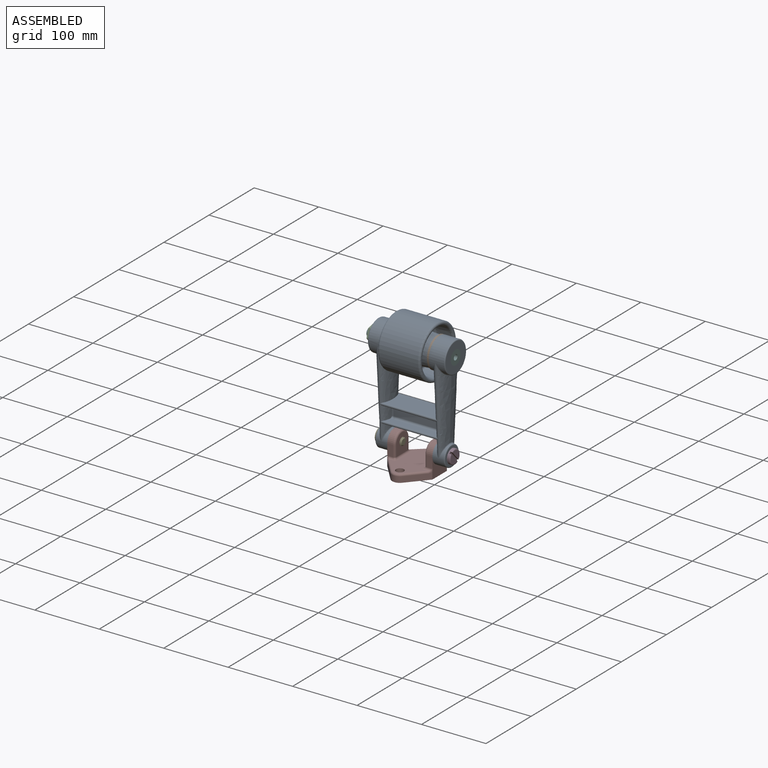
[diagram: assembled view]
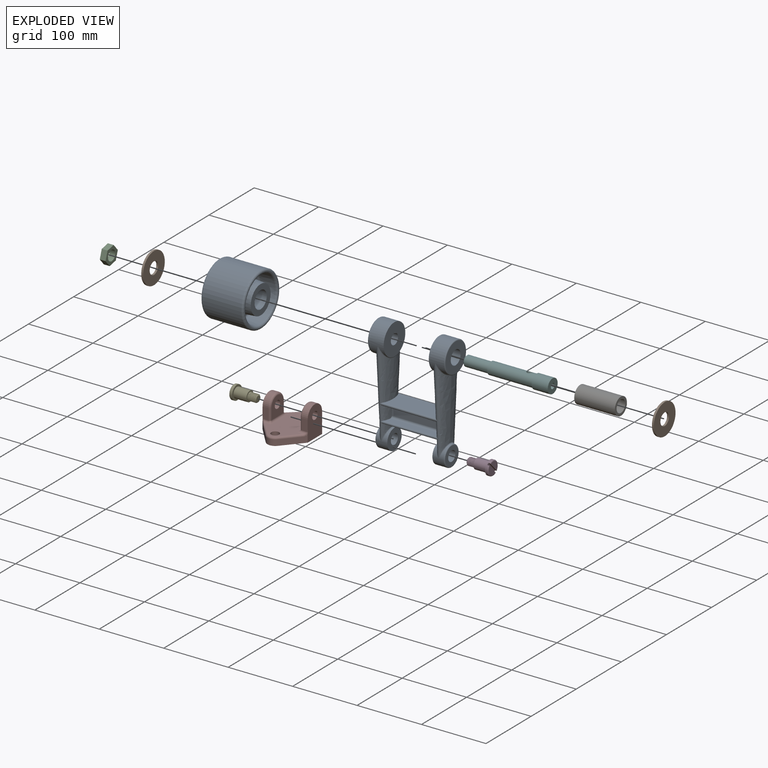
[diagram: exploded view]
GUIDED TOUR — MATED ASSEMBLY (Onshape document 42afe4945be6161ba406758f, AutoMate assembly 42afe4945be6161ba406758f_dd6ebe2deab0619ed951adb3_95dd95c29962d40d304b8ec3_default)

This assembly has 10 components, labeled P0..P9 below (a component is one placed occurrence of a part; the same part can appear more than once), held together by 9 mates. A mate is a constraint between two components; its type names the relative motion it leaves free:
  CYLINDRICAL — leaves both rotation about and translation along the listed axis free,
  FASTENED — locks the two components together rigidly (no relative motion),
  REVOLUTE — leaves rotation about the listed axis free (a hinge).
Axis/direction vectors are unit vectors and 'through' points are millimeter coordinates, both in the assembly's world frame.

MATES
  1. CYLINDRICAL "Cylindrical 3": P2 <-> P0, axis (1.000, 0.000, 0.000) through (-101.11, 20.08, 131.72) mm
  2. FASTENED "Fastened 1": P9 <-> P0, direction (1.000, 0.000, 0.000) through (-6.11, 20.08, 131.72) mm
  3. FASTENED "Fastened 2": P1 <-> P0, direction (-1.000, 0.000, 0.000) through (-76.11, 20.08, 131.72) mm
  4. CYLINDRICAL "Cylindrical 1": P3 <-> P0, axis (1.000, 0.000, 0.000) through (12.89, 20.08, -8.28) mm
  5. REVOLUTE "Revolute 1": P0 <-> P7, axis (-1.000, 0.000, 0.000) through (-76.11, 20.08, -8.28) mm
  6. REVOLUTE "Revolute 3": P6 <-> P5, axis (1.000, 0.000, 0.000) through (-41.11, 20.08, 131.72) mm
  7. CYLINDRICAL "Cylindrical 2": P4 <-> P0, axis (1.000, 0.000, 0.000) through (-94.67, 20.08, -8.28) mm
  8. REVOLUTE "Revolute 4": P8 <-> P6, axis (1.000, 0.000, 0.000) through (-41.11, 20.08, 131.72) mm
  9. REVOLUTE "Revolute 2": P5 <-> P0, axis (1.000, 0.000, 0.000) through (18.89, 20.08, 131.72) mm

ASSEMBLY ORDER
  1. P0 — the base component [order heuristic]
  2. P1 — core [order heuristic]
  3. P3 — core [order heuristic]
  4. P4 — core [order heuristic]
  5. P2 [order verified]
  6. P7 — core [order heuristic]
  7. P8 — core [order heuristic]
  8. P5 — core [order heuristic]
  9. P6 — core [order heuristic]
  10. P9 — core [order heuristic]
Order-tag legend:
  [order verified] — this step's position reverses a verified removal order: the component was checked to insert without passing through the ones already placed.
  [order heuristic] — the first 9 components form the assembly's core: parts whose collision-free extraction could not be verified, listed in mate-graph order.

Of the 10 components, 3 carry the full construction recipe — the FeatureScript program that regenerates the part's solid from scratch; the rest are supplied as boundary geometry only.
Each toured component is shown spotlighted twice — in the assembled view, then in the exploded view, where a leader line traces a displaced component back to its assembled socket (saturated green if recipe-attached, orange if geometry-only; every other component desaturated gray) — followed by its recipe or geometry summary and the mates that hold it.
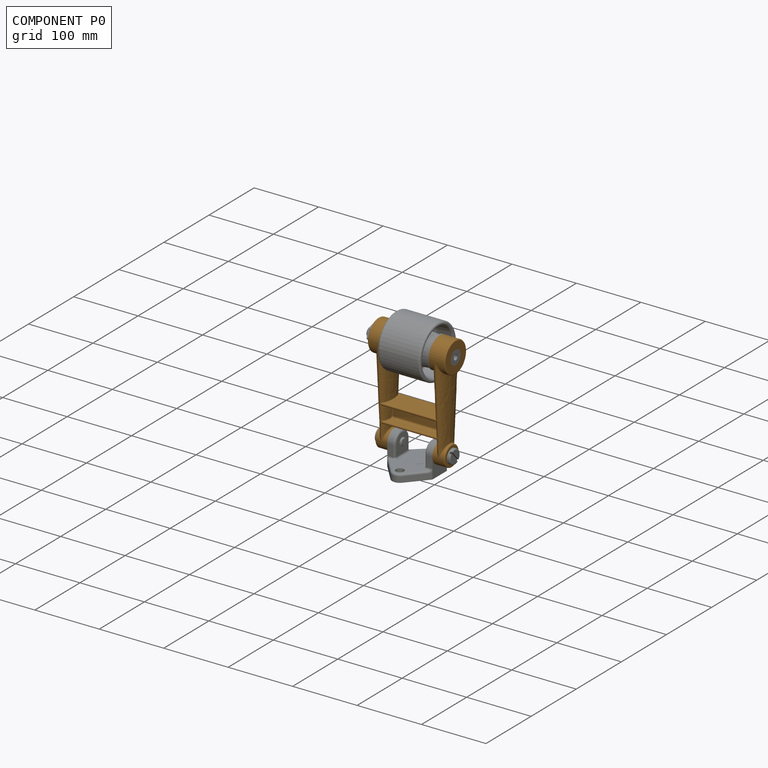
[diagram: component P0 — assembled]
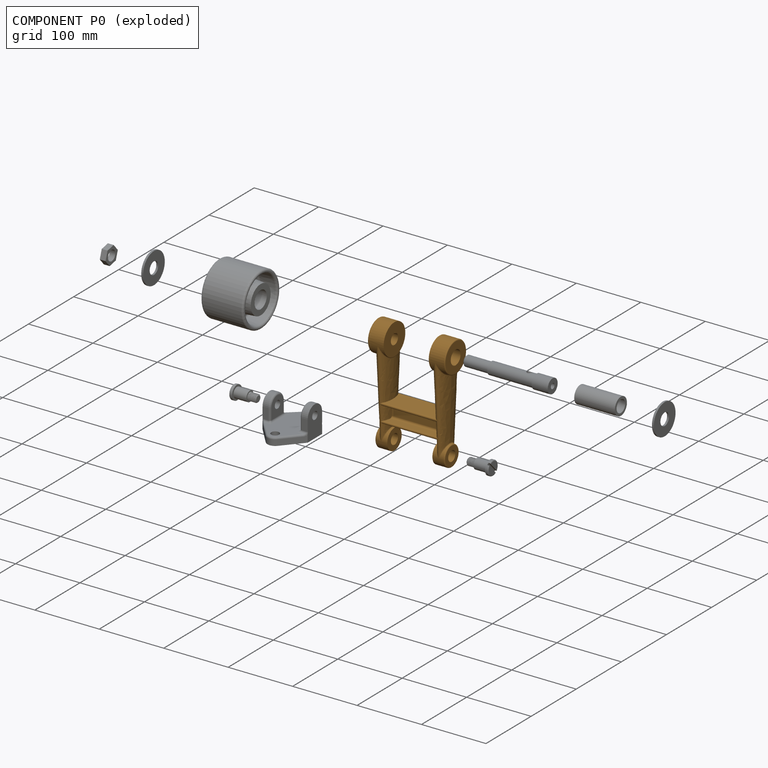
[diagram: component P0 — exploded]
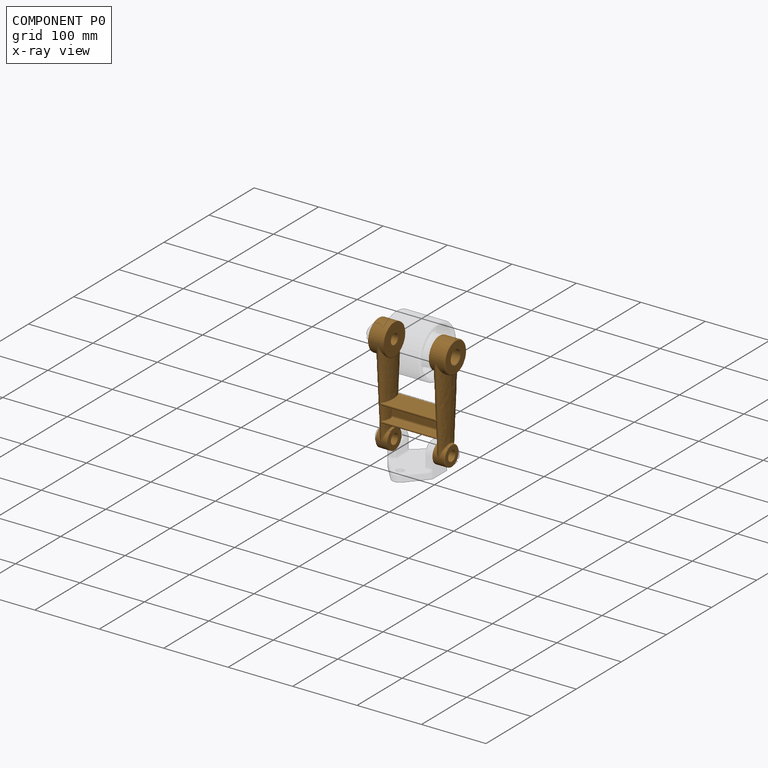
[diagram: component P0 — x-ray view]
COMPONENT P0 — geometry summary (no construction recipe available for this part):
  bounding box: 183.3 x 120.0 x 52.0 mm
  B-rep topology: 1 solid, 57 faces, 316 edges
  volume: 229439 mm^3 (20% of its bounding box)
  symmetry: mirror-symmetric across its y mid-plane
Held by: CYLINDRICAL mate "Cylindrical 3" to P2; FASTENED mate "Fastened 1" to P9; FASTENED mate "Fastened 2" to P1; CYLINDRICAL mate "Cylindrical 1" to P3; REVOLUTE mate "Revolute 1" to P7; CYLINDRICAL mate "Cylindrical 2" to P4; REVOLUTE mate "Revolute 2" to P5.
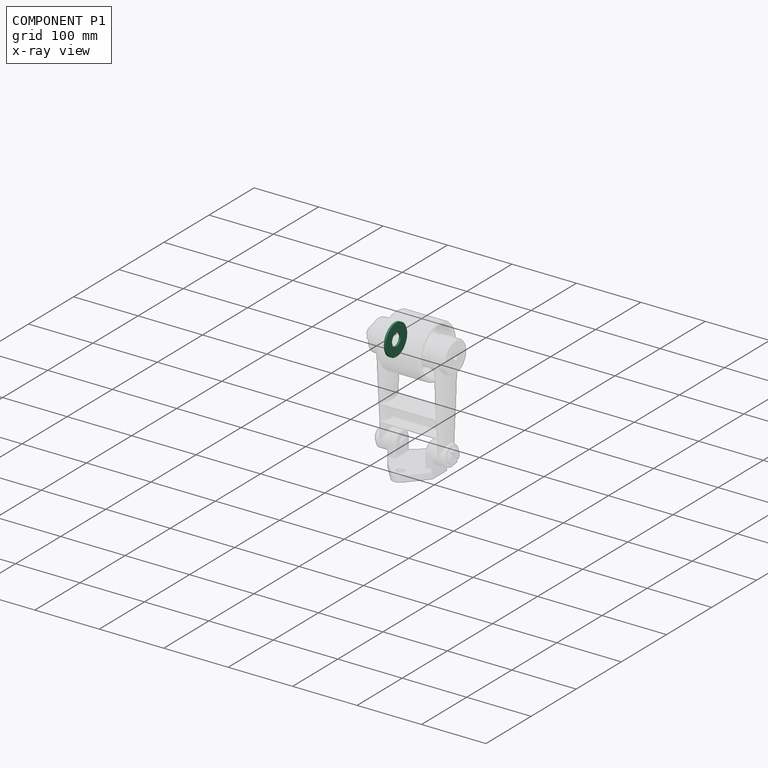
[diagram: component P1 — x-ray view]
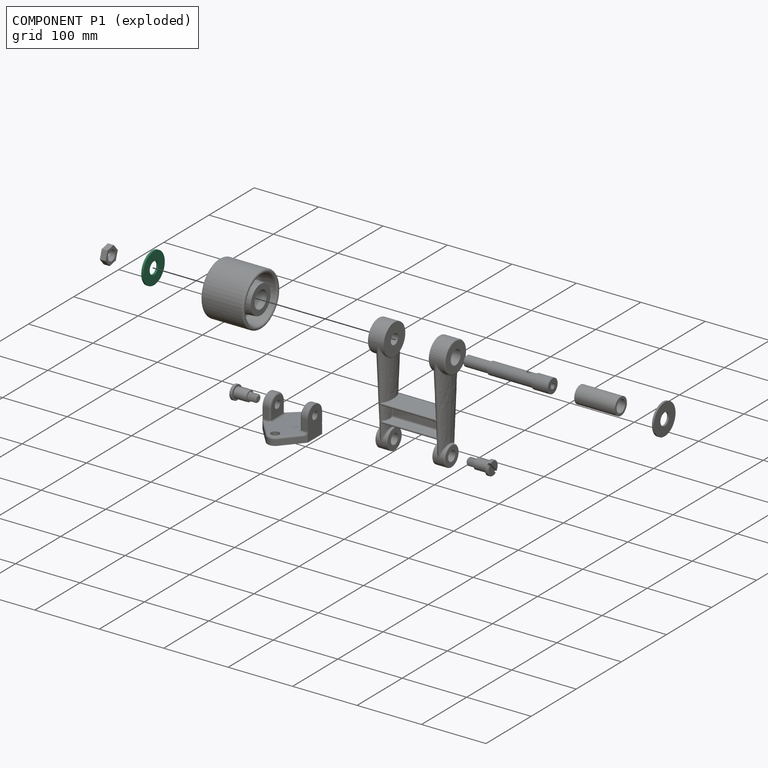
[diagram: component P1 — exploded]
COMPONENT P1 — recipe-attached (CADFS 00144085, mesh-verified: the recipe's output STEP matches this component's geometry to below the mesh-comparison resolution (tessellation chordal tolerance ~0.102 mm)).
Held by: FASTENED mate "Fastened 2" to P0.
Construction recipe (FeatureScript — the CAD program that rebuilds this solid; sketch coordinates are in the units given by the * unit suffixes, e.g. mm):

FeatureScript 1511;
import(path : "onshape/std/geometry.fs", version : "1511.0");
import(path : "onshape/std/common.fs", version : "1511.0");
const mm = millimeter;
const VERTEX = EntityType.VERTEX;
const EDGE = EntityType.EDGE;
const FACE = EntityType.FACE;
const BODY = EntityType.BODY;
function v(x, y){return vector(x, y);}
function OD(order){return orderDisambiguation(order);}
function OSD(set){return originalSetDisambiguation(set);}
function TD(topology){return topologyDisambiguation(topology);}
function TDD(query){return trueDependencyDisambiguation(query);}
function sQuery(a, b, c) {return sketchEntityQuery(a, b, c);}

annotation { "Feature Type Name" : "Feature", "Feature Type Description" : "" }
export const myFeature = defineFeature(function(context is Context, id is Id, definition is map)
    precondition{}
    {
        {
            var Q0;
            Q0=qCreatedBy(makeId("Front.planeOp"),FACE);
            var sketch = newSketch(context, id + "F0", { "sketchPlane" : qUnion([Q0])});
            skCircle(sketch, "E0", {"center": v(0, 0) * mm, "radius": 9.5 * mm});
            skCircle(sketch, "E1", {"center": v(0, 0) * mm, "radius": 24 * mm});
            skSolve(sketch);
        }
        {
            var Q0;
            Q0 = qSketchRegion(id + "F0", true);
            extrude(context, id + "F1", {"entities" : qUnion([Q0]), "depth" : 3 * mm});
        }
    });
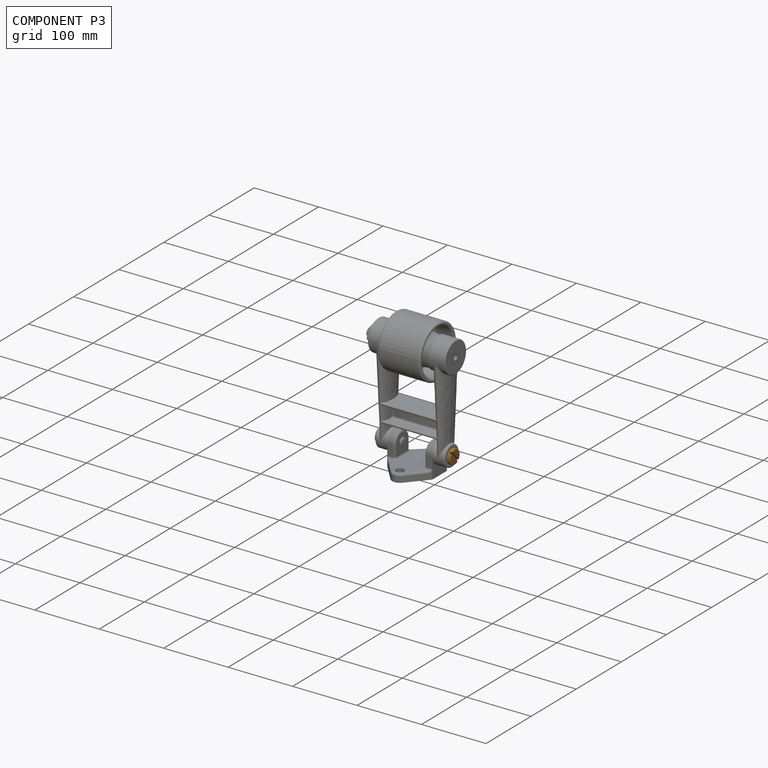
[diagram: component P3 — assembled]
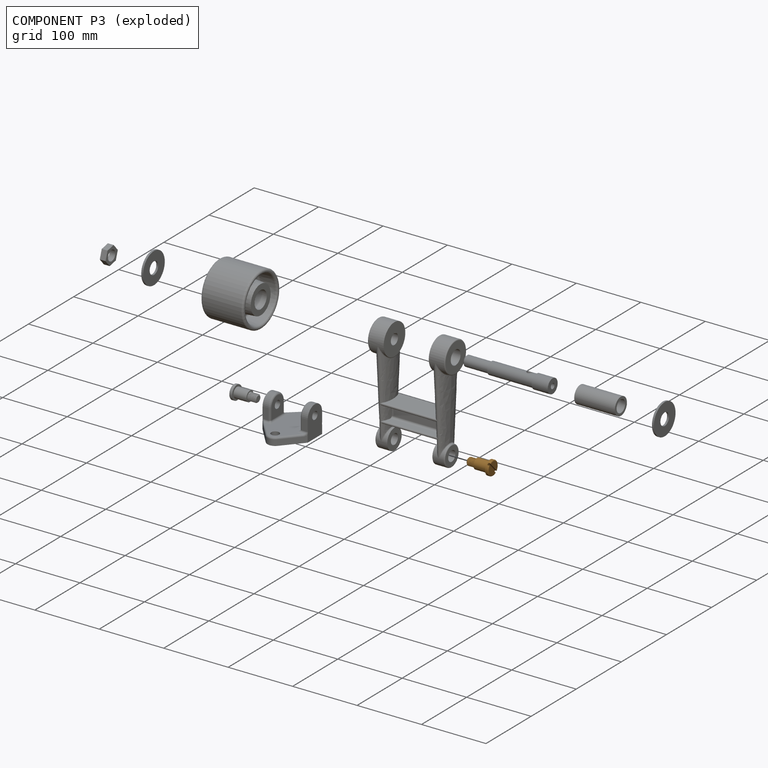
[diagram: component P3 — exploded]
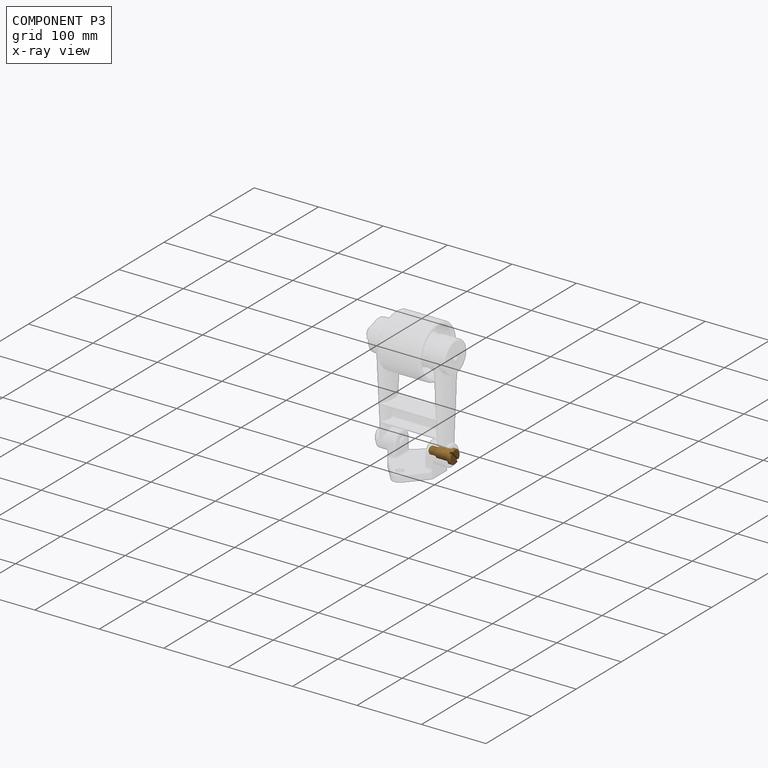
[diagram: component P3 — x-ray view]
COMPONENT P3 — geometry summary (no construction recipe available for this part):
  bounding box: 38.0 x 23.8 x 23.6 mm
  B-rep topology: 1 solid, 18 faces, 78 edges
  volume: 6999 mm^3 (33% of its bounding box)
Held by: CYLINDRICAL mate "Cylindrical 1" to P0.
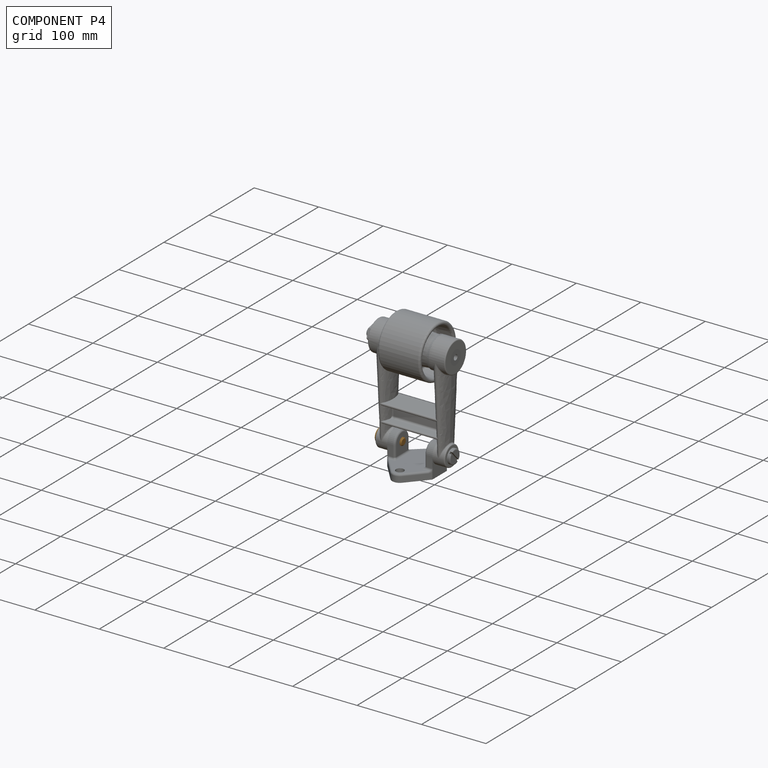
[diagram: component P4 — assembled]
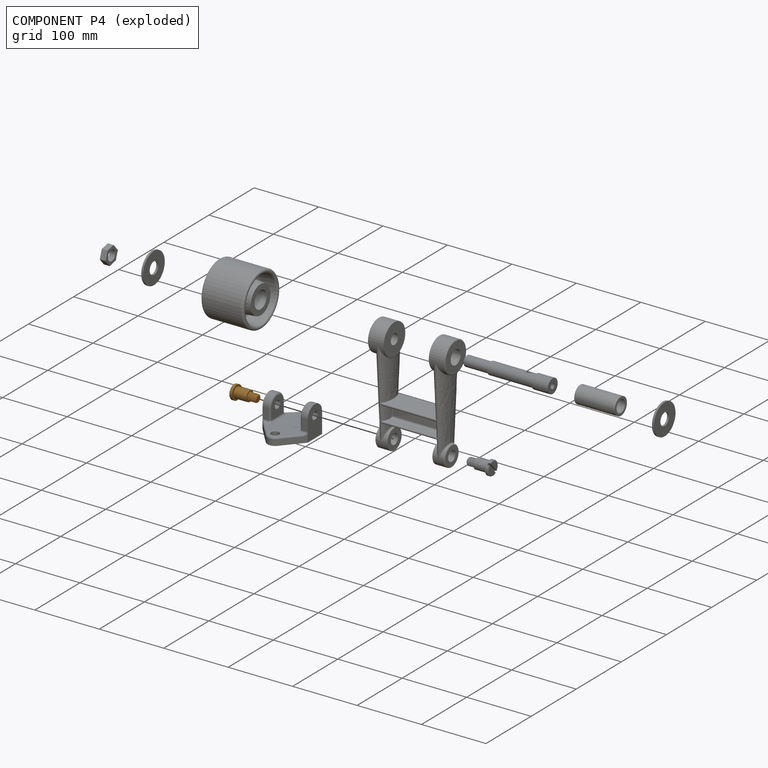
[diagram: component P4 — exploded]
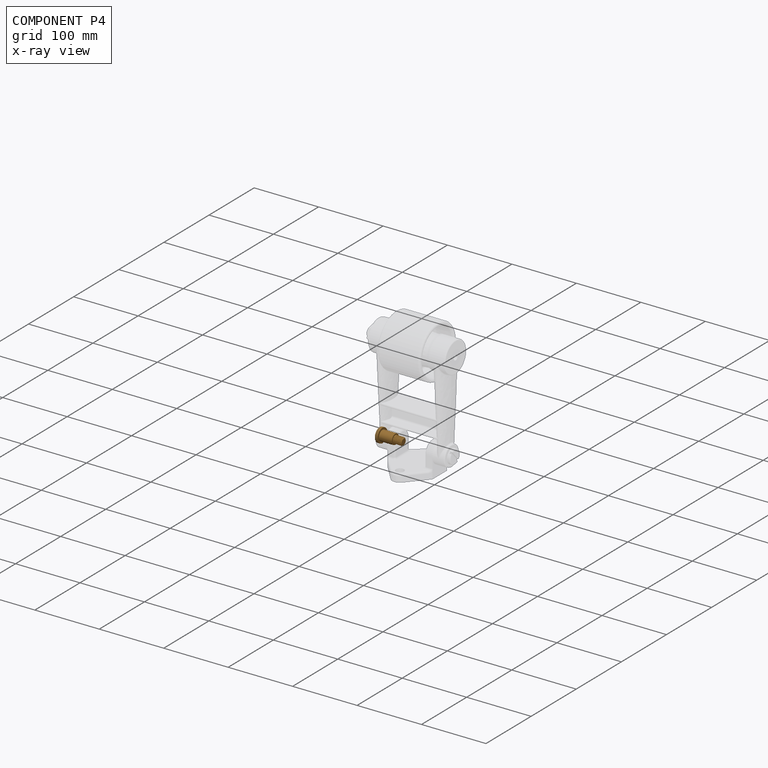
[diagram: component P4 — x-ray view]
COMPONENT P4 — geometry summary (no construction recipe available for this part):
  bounding box: 38.0 x 23.8 x 23.6 mm
  B-rep topology: 1 solid, 18 faces, 78 edges
  volume: 6999 mm^3 (33% of its bounding box)
Held by: CYLINDRICAL mate "Cylindrical 2" to P0.
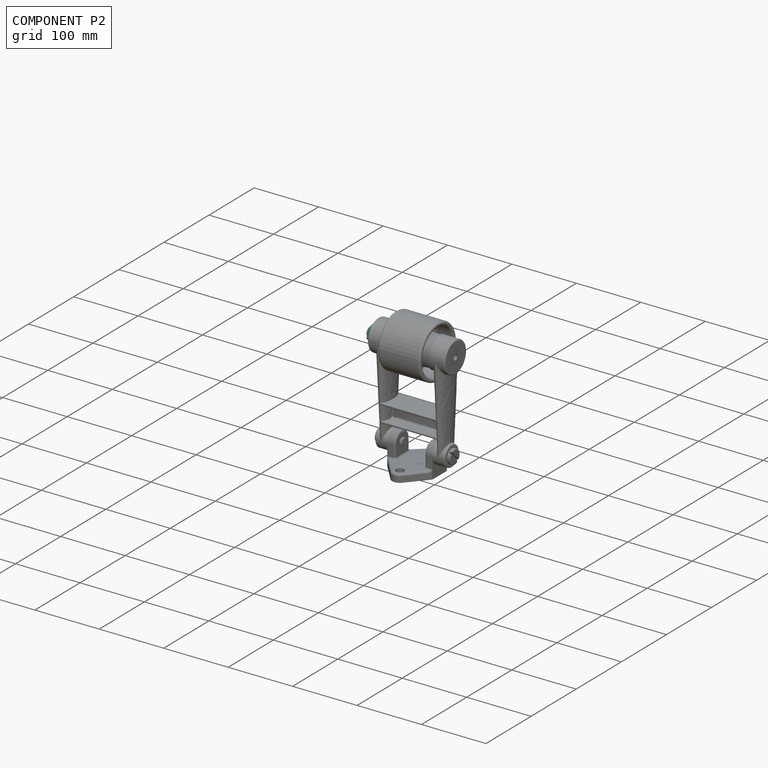
[diagram: component P2 — assembled]
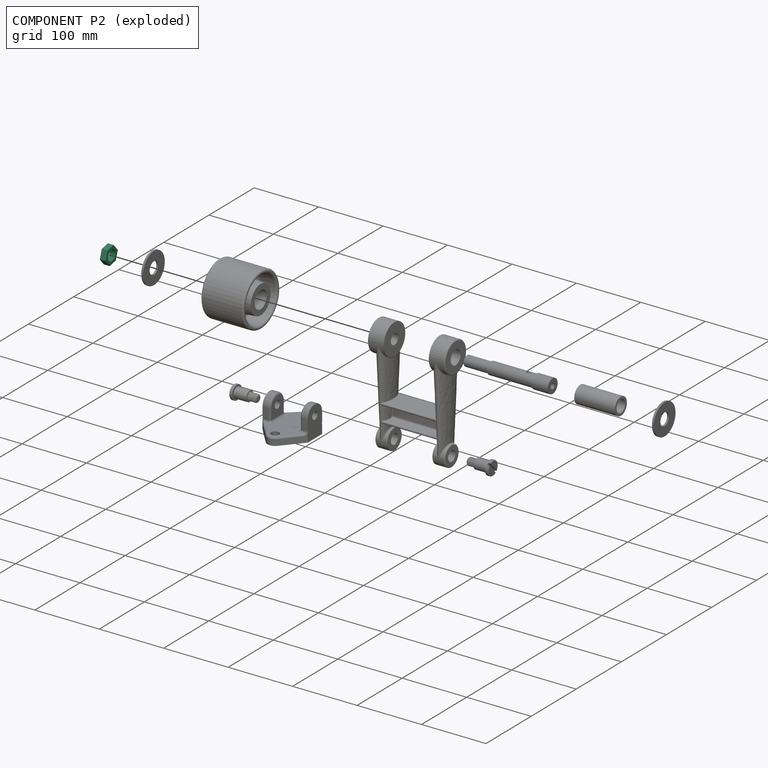
[diagram: component P2 — exploded]
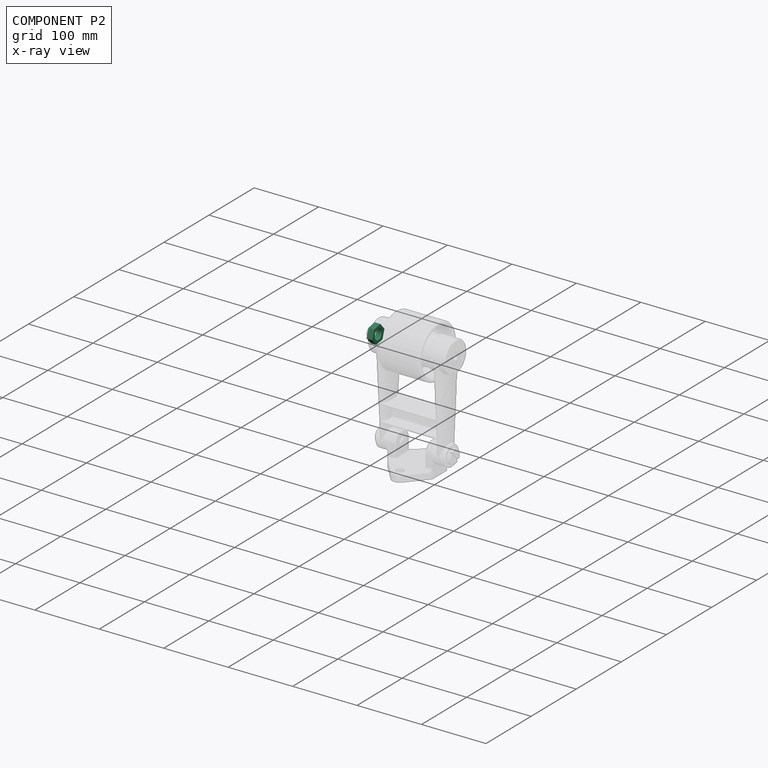
[diagram: component P2 — x-ray view]
COMPONENT P2 — recipe-attached (CADFS 00144086, mesh-verified: the recipe's output STEP matches this component's geometry to below the mesh-comparison resolution (tessellation chordal tolerance ~0.0566 mm)).
Held by: CYLINDRICAL mate "Cylindrical 3" to P0.
Construction recipe (FeatureScript — the CAD program that rebuilds this solid; sketch coordinates are in the units given by the * unit suffixes, e.g. mm):

FeatureScript 1511;
import(path : "onshape/std/geometry.fs", version : "1511.0");
import(path : "onshape/std/common.fs", version : "1511.0");
const mm = millimeter;
const VERTEX = EntityType.VERTEX;
const EDGE = EntityType.EDGE;
const FACE = EntityType.FACE;
const BODY = EntityType.BODY;
function v(x, y){return vector(x, y);}
function OD(order){return orderDisambiguation(order);}
function OSD(set){return originalSetDisambiguation(set);}
function TD(topology){return topologyDisambiguation(topology);}
function TDD(query){return trueDependencyDisambiguation(query);}
function sQuery(a, b, c) {return sketchEntityQuery(a, b, c);}

annotation { "Feature Type Name" : "Feature", "Feature Type Description" : "" }
export const myFeature = defineFeature(function(context is Context, id is Id, definition is map)
    precondition{}
    {
        {
            var Q0;
            Q0=qCreatedBy(makeId("Front.planeOp"),FACE);
            var sketch = newSketch(context, id + "F0", { "sketchPlane" : qUnion([Q0])});
            skCircle(sketch, "E0.cCircle", {"center": v(0, 0) * mm, "radius": 12 * mm, "construction": true});
            skLineSegment(sketch, "E0.0", {"start": v(-6.93, 12) * mm, "end": v(6.93, 12) * mm});
            skLineSegment(sketch, "E0.1", {"start": v(6.93, 12) * mm, "end": v(13.86, 0) * mm});
            skLineSegment(sketch, "E0.2", {"start": v(13.86, 0) * mm, "end": v(6.93, -12) * mm});
            skLineSegment(sketch, "E0.3", {"start": v(6.93, -12) * mm, "end": v(-6.93, -12) * mm});
            skLineSegment(sketch, "E0.4", {"start": v(-6.93, -12) * mm, "end": v(-13.86, 0) * mm});
            skLineSegment(sketch, "E0.5", {"start": v(-13.86, 0) * mm, "end": v(-6.93, 12) * mm});
            skPoint(sketch, "E0.0.midPoint", {"position": v(0, 12) * mm});
            skSolve(sketch);
        }
        {
            var Q0;
            Q0 = qSketchRegion(id + "F0", true);
            extrude(context, id + "F1", {"entities" : qUnion([Q0]), "oppositeDirection" : true, "depth" : 9 * mm});
        }
        {
            var Q0;
            Q0=makeQuery(id+"F1.opExtrude","CAP_FACE",FACE,{"disambiguationData":[OSD([sQuery(id+"F0.wireOp",EDGE,"E0.0"),sQuery(id+"F0.wireOp",EDGE,"E0.1"),sQuery(id+"F0.wireOp",EDGE,"E0.2"),sQuery(id+"F0.wireOp",EDGE,"E0.3"),sQuery(id+"F0.wireOp",EDGE,"E0.4"),sQuery(id+"F0.wireOp",EDGE,"E0.5")])],"isStart":true});
            var sketch = newSketch(context, id + "F2", { "sketchPlane" : qUnion([Q0])});
            skCircle(sketch, "E1", {"center": v(0, 0) * mm, "radius": 8 * mm});
            skSolve(sketch);
        }
        {
            var Q0;
            Q0 = qSketchRegion(id + "F2", true);
            extrude(context, id + "F3", {"entities" : qUnion([Q0]), "operationType" : NewBodyOperationType.REMOVE, "endBound" : BoundingType.THROUGH_ALL, "oppositeDirection" : true, "depth" : 25 * mm});
        }
    });
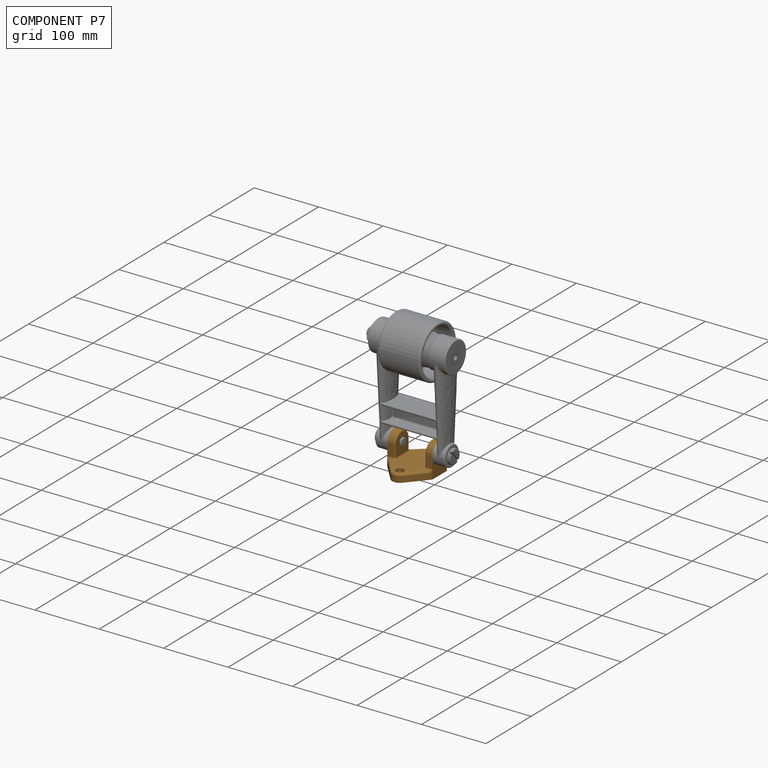
[diagram: component P7 — assembled]
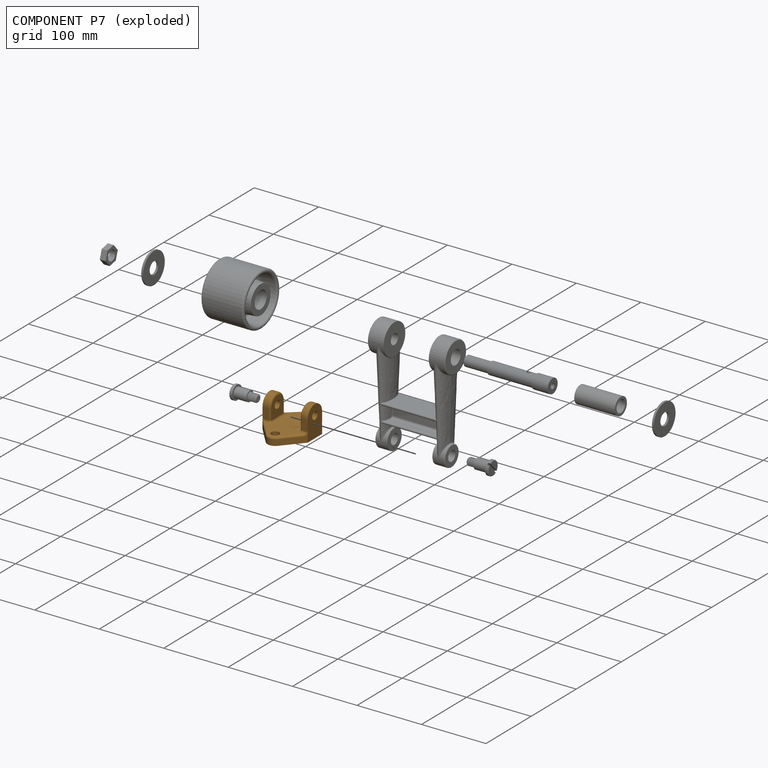
[diagram: component P7 — exploded]
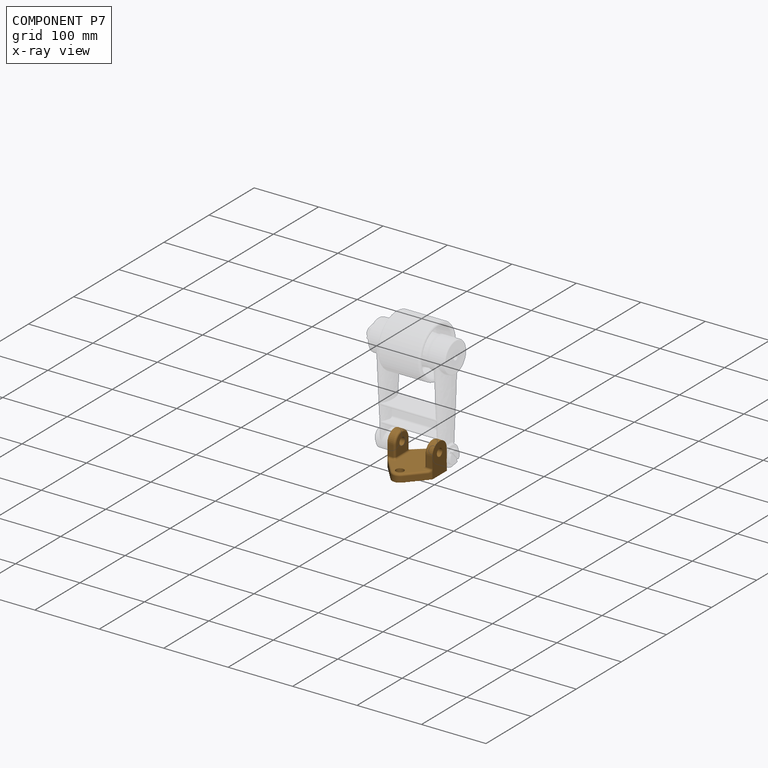
[diagram: component P7 — x-ray view]
COMPONENT P7 — geometry summary (no construction recipe available for this part):
  bounding box: 95.8 x 71.8 x 49.3 mm
  B-rep topology: 1 solid, 47 faces, 226 edges
  volume: 76310 mm^3 (23% of its bounding box)
  symmetry: mirror-symmetric across its x mid-plane
Held by: REVOLUTE mate "Revolute 1" to P0.
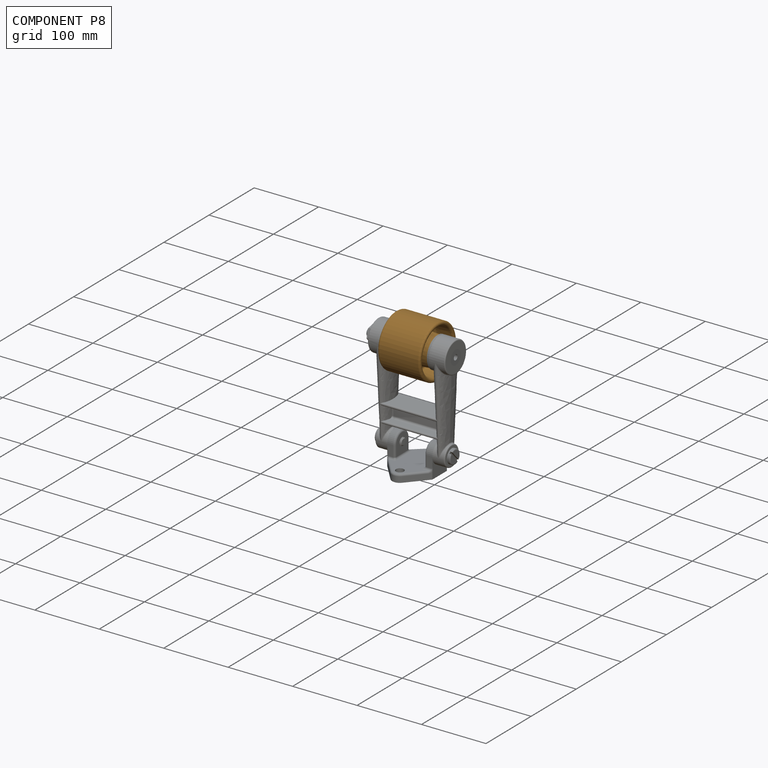
[diagram: component P8 — assembled]
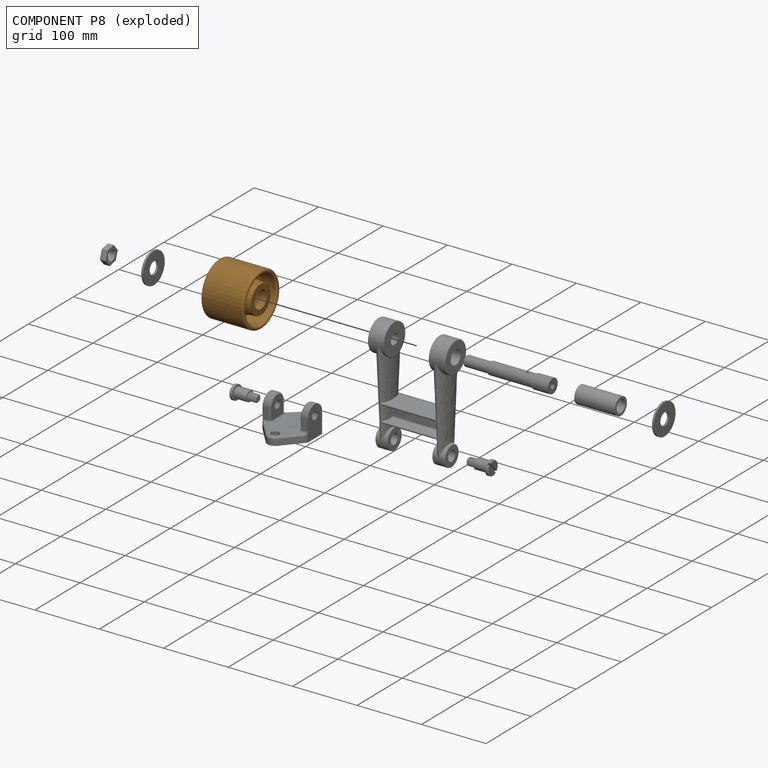
[diagram: component P8 — exploded]
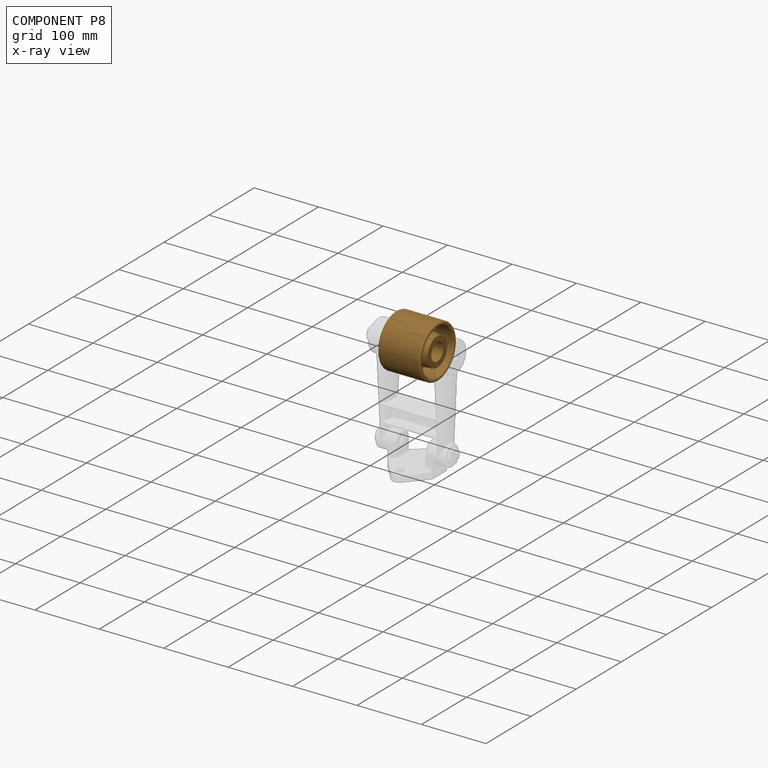
[diagram: component P8 — x-ray view]
COMPONENT P8 — geometry summary (no construction recipe available for this part):
  bounding box: 88.8 x 88.8 x 66.0 mm
  B-rep topology: 1 solid, 20 faces, 80 edges
  volume: 200839 mm^3 (39% of its bounding box)
  symmetry: revolution-symmetric about the x axis through its bounding-box center; 2-fold rotationally symmetric about the y axis; 2-fold rotationally symmetric about the z axis; mirror-symmetric across its x mid-plane, y mid-plane, z mid-plane
Held by: REVOLUTE mate "Revolute 4" to P6.
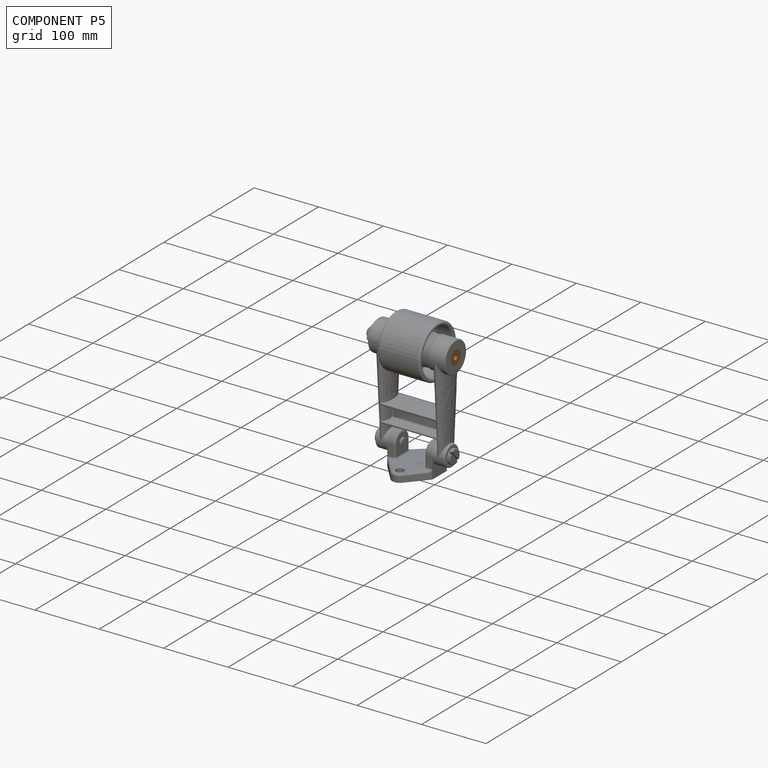
[diagram: component P5 — assembled]
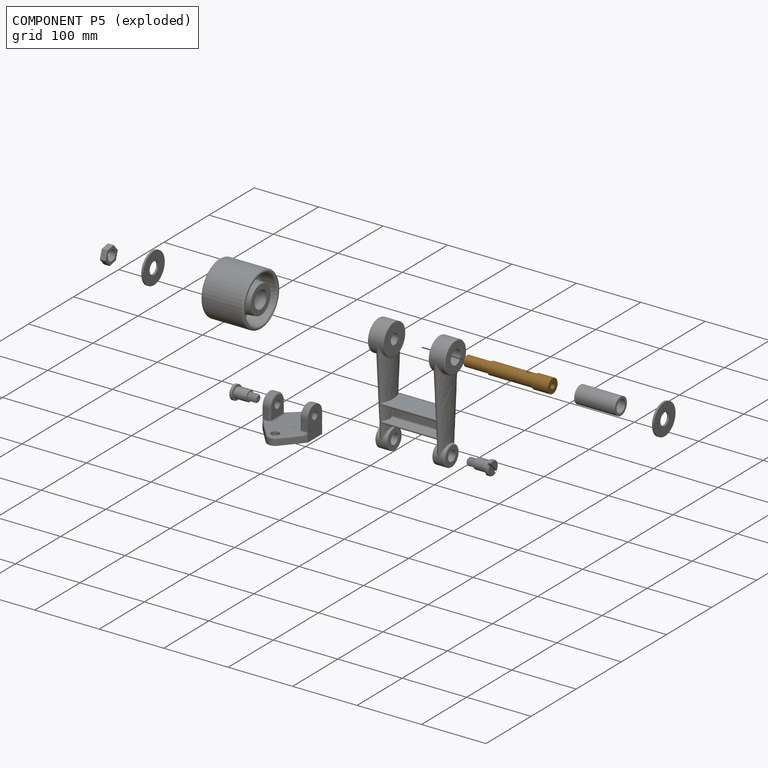
[diagram: component P5 — exploded]
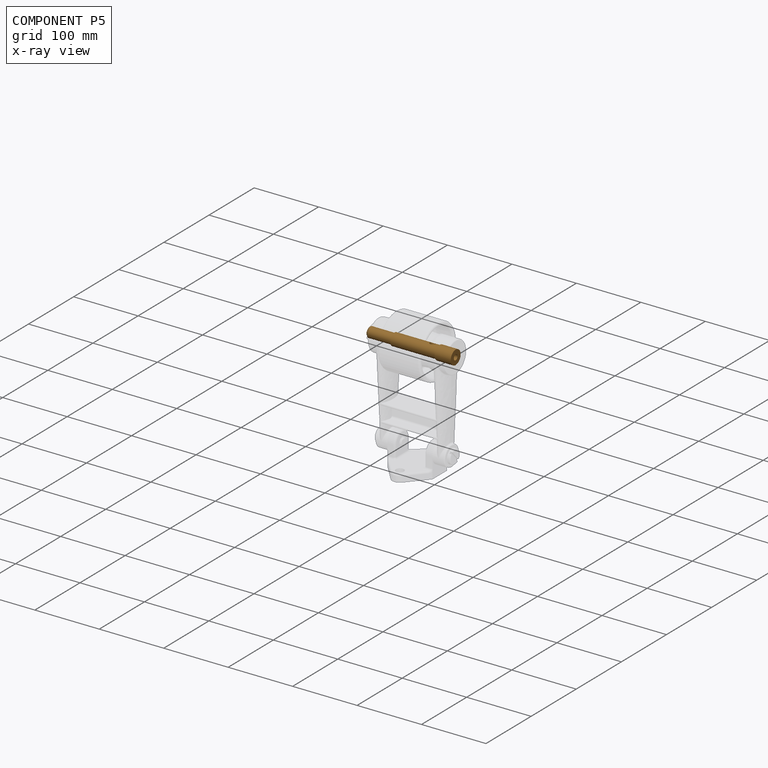
[diagram: component P5 — x-ray view]
COMPONENT P5 — geometry summary (no construction recipe available for this part):
  bounding box: 134.0 x 22.0 x 22.0 mm
  B-rep topology: 1 solid, 13 faces, 52 edges
  volume: 34137 mm^3 (53% of its bounding box)
  symmetry: 2-fold rotationally symmetric about the x axis; mirror-symmetric across its y mid-plane, z mid-plane
Held by: REVOLUTE mate "Revolute 3" to P6; REVOLUTE mate "Revolute 2" to P0.
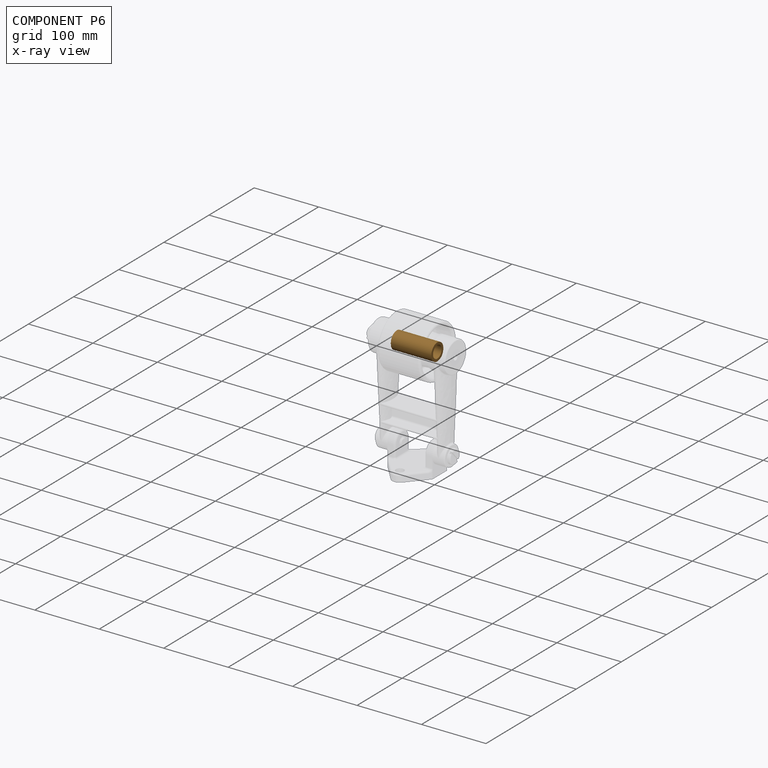
[diagram: component P6 — x-ray view]
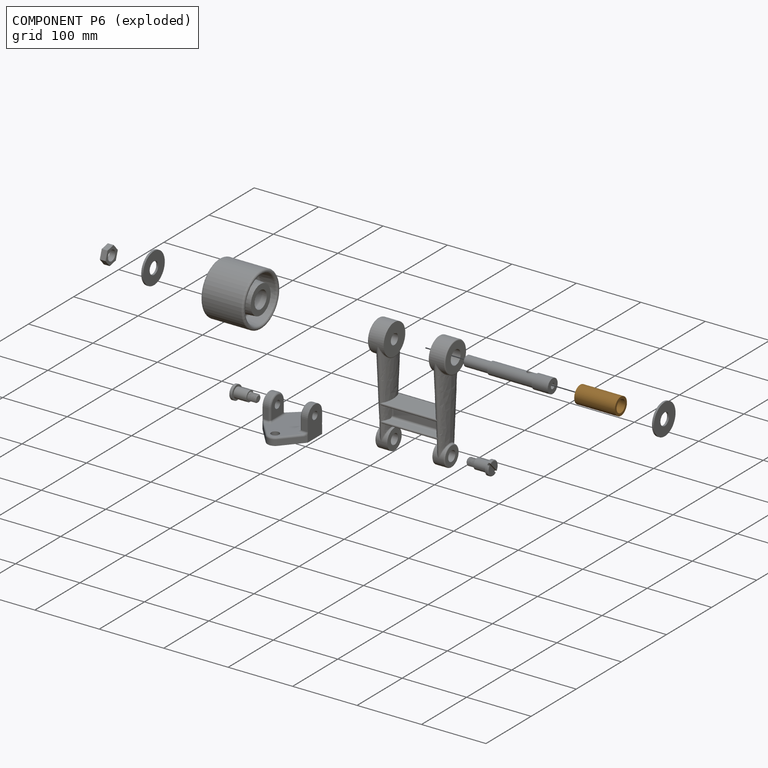
[diagram: component P6 — exploded]
COMPONENT P6 — geometry summary (no construction recipe available for this part):
  bounding box: 63.0 x 26.9 x 26.9 mm
  B-rep topology: 1 solid, 14 faces, 60 edges
  volume: 17413 mm^3 (38% of its bounding box)
  symmetry: mirror-symmetric across its y mid-plane
Held by: REVOLUTE mate "Revolute 3" to P5; REVOLUTE mate "Revolute 4" to P8.
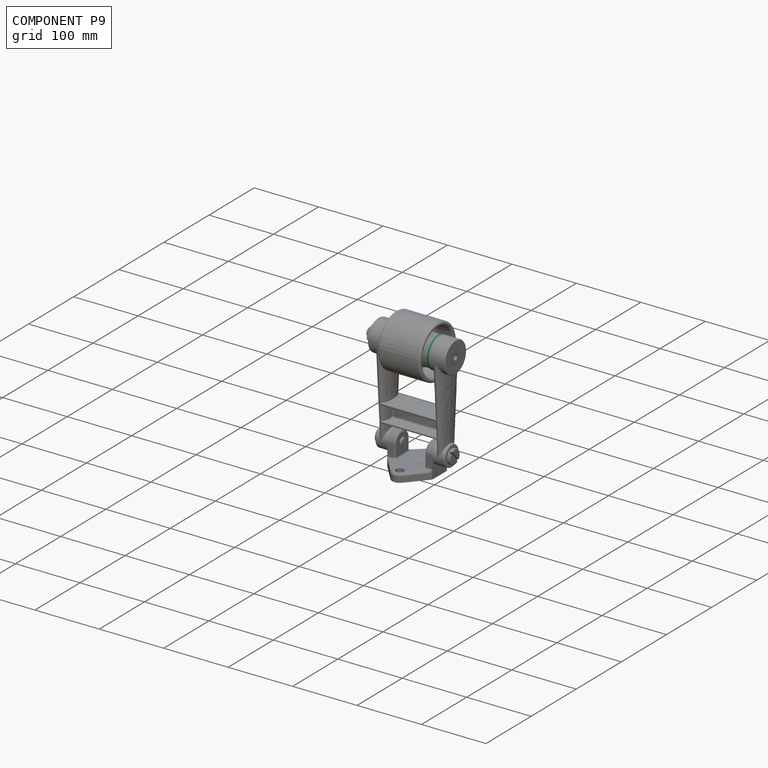
[diagram: component P9 — assembled]
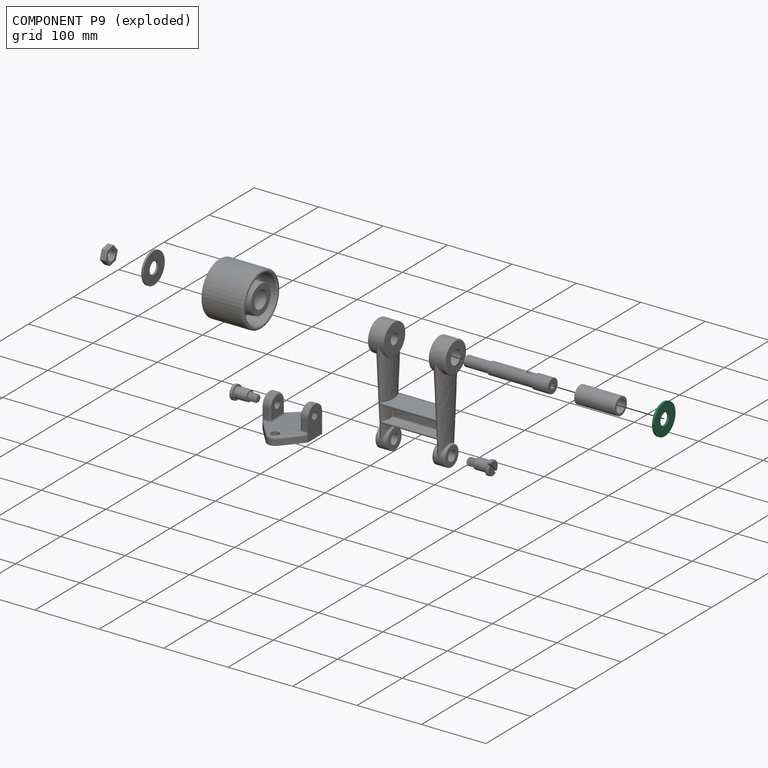
[diagram: component P9 — exploded]
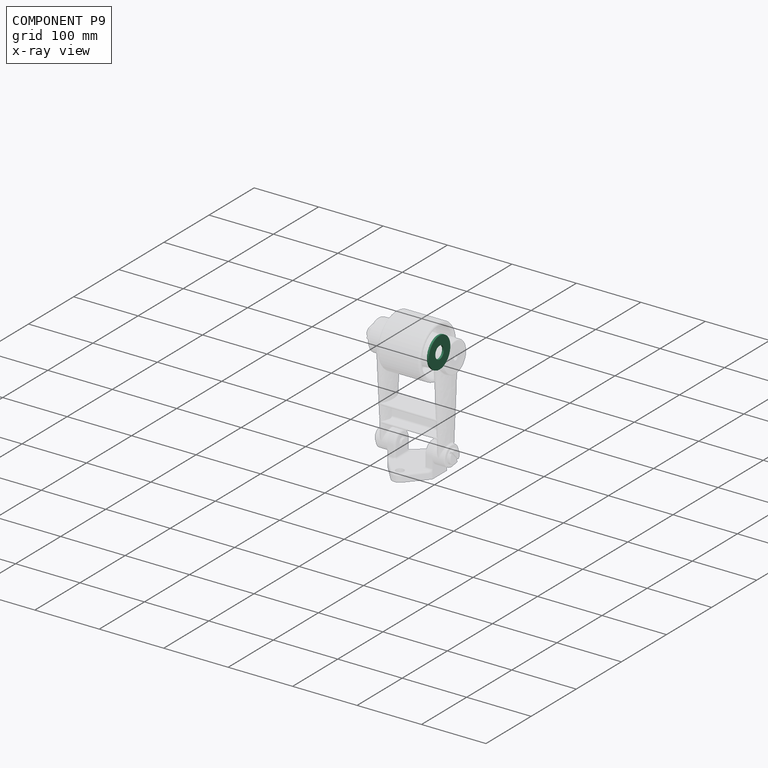
[diagram: component P9 — x-ray view]
COMPONENT P9 — same part as P1 (CADFS 00144085); its construction recipe is shown at P1.
Held by: FASTENED mate "Fastened 1" to P0.
PROVENANCE & LICENSES
Assembly (occurrences, transforms, mates, per-part STEP geometry): AutoMate dataset, Zenodo record 7776208, CC0.
Construction recipes: CADFS (HuggingFace VladPyatov/CADFS, CC-BY-4.0, layered over the ABC dataset), FeatureScript reconstruction programs keyed by ABC model id.
Join: ABC meta listings map ABC model id -> Onshape documentId; within a shared document, parts are matched by geometric signature (bounding-box dims + volume at 0.1% relative tolerance, exact B-rep face/solid counts).
Verification: 3 of this assembly's 10 components carry a recipe attachment, and every attachment is mesh-verified: the CADFS STEP and the AutoMate member STEP were compared as meshes in their shared local frame (symmetric sampled-point-to-mesh distance); worst across the 3 attachments: below the mesh-comparison resolution (tessellation chordal tolerance ~0.102 mm) on a 68 mm part.
Renders: orthographic iso camera (az 35 / el 25); the floor grid conveys scale (grid pitch printed in each image; no ruler). In the exploded view each component is displaced by its stored offset vector: the offsets alone carry the explosion direction (mate normal/axis signs are not orientation cues and do not encode it), and separation distances are assigned per mate-chain, not proportionally to assembly-order depth.
